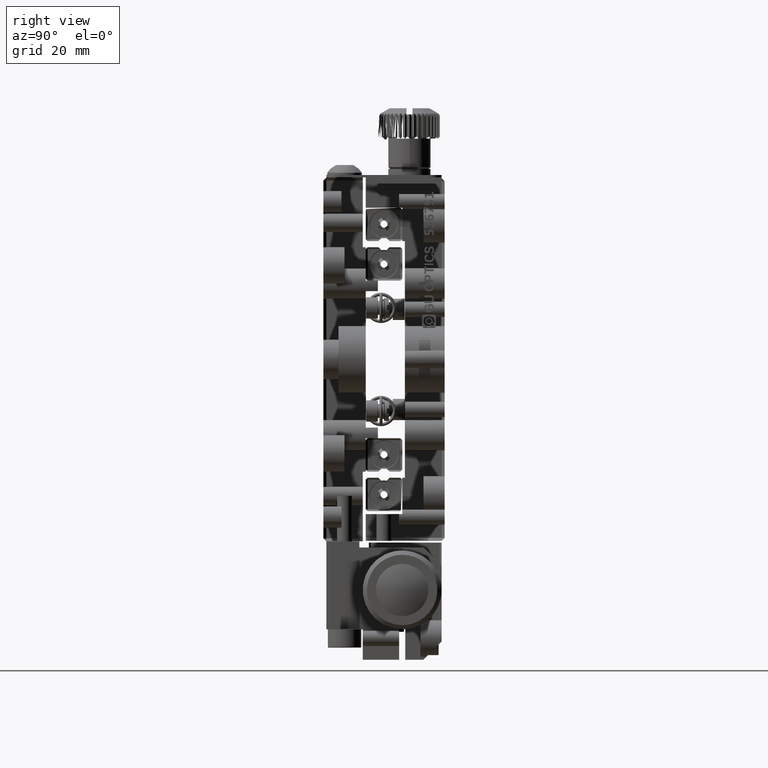
[diagram: clean part render]
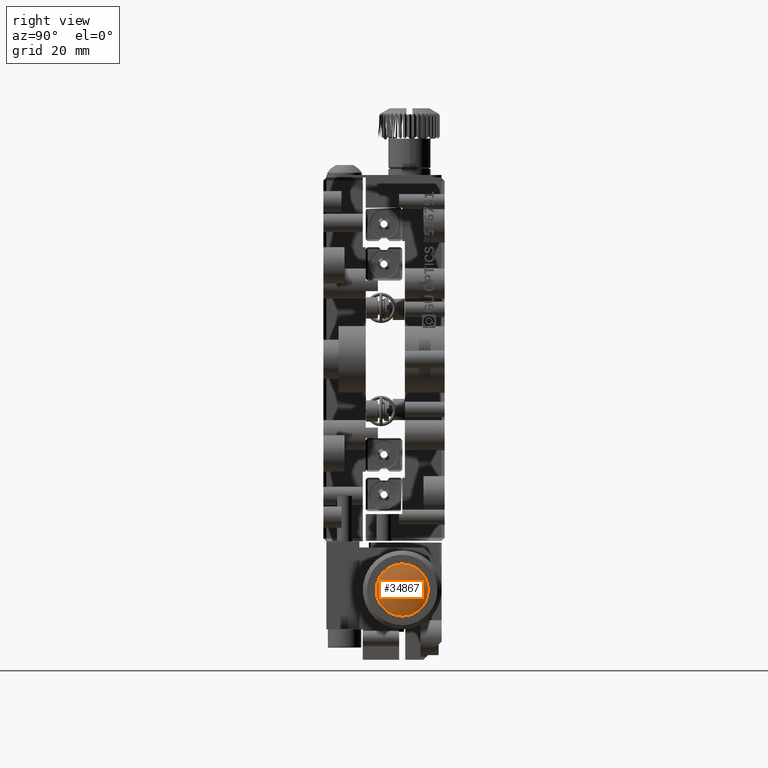
[diagram: same view with one face highlighted and labeled with its STEP entity id]
A machine part, right view. The second image highlights one B-rep face of the part: STEP entity #34867.
In plain terms, the highlighted spherical surface has radius 9.5 mm.
Its self-contained STEP definition (entity closure, byte-faithful):
#124 = CARTESIAN_POINT ( 'NONE',  ( 44.22112591099850931, 10.35744726046766573, -41.43856982131278244 ) ) ;
#1881 = VERTEX_POINT ( 'NONE', #24337 ) ;
#4378 = CARTESIAN_POINT ( 'NONE',  ( 44.22112591099850931, 8.699996999999925151, -38.00000000000000711 ) ) ;
#4810 = CARTESIAN_POINT ( 'NONE',  ( 44.22112591099850931, 8.699996999999928704, -37.43713092353274874 ) ) ;
#6668 = CARTESIAN_POINT ( 'NONE',  ( 44.22112591099850931, 13.00000000000000888, -42.30000300000010327 ) ) ;
#11789 = CARTESIAN_POINT ( 'NONE',  ( 44.22112591099850931, 16.43856982131278244, -40.64255273953235559 ) ) ;
#12212 = CARTESIAN_POINT ( 'NONE',  ( 44.22112591099850931, 16.75728409128255336, -40.16556312645185756 ) ) ;
#12665 = ORIENTED_EDGE ( 'NONE', *, *, #65386, .F. ) ;
#17406 = CARTESIAN_POINT ( 'NONE',  ( 44.22112591099850931, 12.43713092353274519, -33.69999699999993936 ) ) ;
#19675 = CARTESIAN_POINT ( 'NONE',  ( 44.22112591099851642, 11.87448331201142615, -42.18808543159188673 ) ) ;
#20001 = CARTESIAN_POINT ( 'NONE',  ( 44.22112591099850931, 17.30000300000008906, -38.56286907646727968 ) ) ;
#20779 = EDGE_CURVE ( 'NONE', #80279, #47230, #37412, .T. ) ;
#23555 = CARTESIAN_POINT ( 'NONE',  ( 44.22112591099850931, 13.00000000000000888, -33.69999699999993226 ) ) ;
#23680 = CARTESIAN_POINT ( 'NONE',  ( 44.22112591099850931, 17.30000300000008906, -37.43713092353274874 ) ) ;
#24337 = CARTESIAN_POINT ( 'NONE',  ( 44.22112591099850931, 8.699996999999925151, -38.00000000000000711 ) ) ;
#30011 = CARTESIAN_POINT ( 'NONE',  ( 44.22112591099852352, 10.35744726046766573, -34.56143017868723888 ) ) ;
#31344 = CARTESIAN_POINT ( 'NONE',  ( 44.22112591099850931, 17.30000300000009261, -38.00000000000000711 ) ) ;
#31433 = CARTESIAN_POINT ( 'NONE',  ( 44.22112591099850931, 12.43713092353274341, -42.30000300000009616 ) ) ;
#31471 = CARTESIAN_POINT ( 'NONE',  ( 44.22112591099850931, 13.00000000000000888, -33.69999699999993226 ) ) ;
#31979 = B_SPLINE_CURVE_WITH_KNOTS ( 'NONE', 3,
 ( #45179, #20001, #71697, #12212, #11789, #38262, #45607, #46449, #72969, #32179 ),
 .UNSPECIFIED., .F., .F.,
 ( 4, 2, 2, 2, 4 ),
 ( 0.000000000000000000, 0.2500000000000000000, 0.5000000000000000000, 0.7500000000000000000, 1.000000000000000000 ),
 .UNSPECIFIED. ) ;
#32179 = CARTESIAN_POINT ( 'NONE',  ( 44.22112591099850931, 13.00000000000000888, -42.30000300000010327 ) ) ;
#32507 = DIRECTION ( 'NONE',  ( 0.4576507986494785518, 0.000000000000000000, -0.8891320185976289148 ) ) ;
#32917 = FACE_OUTER_BOUND ( 'NONE', #76364, .T. ) ;
#33341 = SPHERICAL_SURFACE ( 'NONE', #48862, 9.499999999999911182 ) ;
#34867 = ADVANCED_FACE ( 'NONE', ( #32917 ), #33341, .T. ) ;
#36514 = CARTESIAN_POINT ( 'NONE',  ( 44.22112591099851642, 8.811914568408143467, -36.87448331201143503 ) ) ;
#36698 = CARTESIAN_POINT ( 'NONE',  ( 44.22112591099850931, 15.16556312645185578, -34.24271590871747151 ) ) ;
#37412 = B_SPLINE_CURVE_WITH_KNOTS ( 'NONE', 3,
 ( #31471, #42769, #44476, #36698, #82326, #83180, #57501, #43190, #23680, #83608 ),
 .UNSPECIFIED., .F., .F.,
 ( 4, 2, 2, 2, 4 ),
 ( 0.000000000000000000, 0.2500000000000000000, 0.5000000000000000000, 0.7500000000000000000, 1.000000000000000000 ),
 .UNSPECIFIED. ) ;
#38262 = CARTESIAN_POINT ( 'NONE',  ( 44.22112591099852352, 15.64255273953234848, -41.43856982131276823 ) ) ;
#39029 = ORIENTED_EDGE ( 'NONE', *, *, #20779, .F. ) ;
#42769 = CARTESIAN_POINT ( 'NONE',  ( 44.22112591099850931, 13.56286907646726902, -33.69999699999993936 ) ) ;
#43012 = CARTESIAN_POINT ( 'NONE',  ( 44.22112591099850931, 10.83443687354816198, -34.24271590871747861 ) ) ;
#43190 = CARTESIAN_POINT ( 'NONE',  ( 44.22112591099852352, 17.18808543159187607, -36.87448331201144924 ) ) ;
#43862 = CARTESIAN_POINT ( 'NONE',  ( 44.22112591099850931, 13.00000000000000888, -33.69999699999993226 ) ) ;
#44440 = CARTESIAN_POINT ( 'NONE',  ( 44.22112591099850931, 13.00000000000000888, -42.30000300000010327 ) ) ;
#44476 = CARTESIAN_POINT ( 'NONE',  ( 44.22112591099851642, 14.12551668798859339, -33.81191456840815590 ) ) ;
#45179 = CARTESIAN_POINT ( 'NONE',  ( 44.22112591099850931, 17.30000300000009261, -38.00000000000000711 ) ) ;
#45279 = CARTESIAN_POINT ( 'NONE',  ( 44.22112591099852352, 8.811914568408143467, -39.12551668798858628 ) ) ;
#45607 = CARTESIAN_POINT ( 'NONE',  ( 44.22112591099850931, 15.16556312645185578, -41.75728409128254981 ) ) ;
#45709 = CARTESIAN_POINT ( 'NONE',  ( 44.22112591099850931, 9.242715908717464401, -40.16556312645185756 ) ) ;
#46156 = VERTEX_POINT ( 'NONE', #6668 ) ;
#46449 = CARTESIAN_POINT ( 'NONE',  ( 44.22112591099852352, 14.12551668798858806, -42.18808543159187963 ) ) ;
#47230 = VERTEX_POINT ( 'NONE', #31344 ) ;
#48862 = AXIS2_PLACEMENT_3D ( 'NONE', #79391, #32507, #72873 ) ;
#53077 = CARTESIAN_POINT ( 'NONE',  ( 44.22112591099852352, 9.561430178687238879, -40.64255273953234138 ) ) ;
#57501 = CARTESIAN_POINT ( 'NONE',  ( 44.22112591099850931, 16.75728409128255691, -35.83443687354817087 ) ) ;
#62993 = CARTESIAN_POINT ( 'NONE',  ( 44.22112591099850931, 9.242715908717462625, -35.83443687354816376 ) ) ;
#65386 = EDGE_CURVE ( 'NONE', #1881, #80279, #79041, .T. ) ;
#66104 = CARTESIAN_POINT ( 'NONE',  ( 44.22112591099850931, 10.83443687354815488, -41.75728409128254270 ) ) ;
#69936 = CARTESIAN_POINT ( 'NONE',  ( 44.22112591099850931, 9.561430178687242432, -35.35744726046767283 ) ) ;
#71233 = CARTESIAN_POINT ( 'NONE',  ( 44.22112591099852352, 11.87448331201142970, -33.81191456840815590 ) ) ;
#71697 = CARTESIAN_POINT ( 'NONE',  ( 44.22112591099851642, 17.18808543159187607, -39.12551668798859339 ) ) ;
#72220 = CARTESIAN_POINT ( 'NONE',  ( 44.22112591099850931, 8.699996999999930480, -38.56286907646727968 ) ) ;
#72873 = DIRECTION ( 'NONE',  ( 0.8891320185976289148, 0.000000000000000000, 0.4576507986494785518 ) ) ;
#72969 = CARTESIAN_POINT ( 'NONE',  ( 44.22112591099850931, 13.56286907646727258, -42.30000300000009616 ) ) ;
#76364 = EDGE_LOOP ( 'NONE', ( #84254, #39029, #12665, #85104 ) ) ;
#78500 = EDGE_CURVE ( 'NONE', #46156, #1881, #84895, .T. ) ;
#78904 = EDGE_CURVE ( 'NONE', #47230, #46156, #31979, .T. ) ;
#79041 = B_SPLINE_CURVE_WITH_KNOTS ( 'NONE', 3,
 ( #4378, #4810, #36514, #62993, #69936, #30011, #43012, #71233, #17406, #43862 ),
 .UNSPECIFIED., .F., .F.,
 ( 4, 2, 2, 2, 4 ),
 ( 0.000000000000000000, 0.2500000000000000000, 0.5000000000000000000, 0.7500000000000000000, 1.000000000000000000 ),
 .UNSPECIFIED. ) ;
#79391 = CARTESIAN_POINT ( 'NONE',  ( 35.75000000000006395, 13.00000000000000711, -37.99999999999991473 ) ) ;
#80279 = VERTEX_POINT ( 'NONE', #23555 ) ;
#82326 = CARTESIAN_POINT ( 'NONE',  ( 44.22112591099850931, 15.64255273953235204, -34.56143017868724598 ) ) ;
#83180 = CARTESIAN_POINT ( 'NONE',  ( 44.22112591099852352, 16.43856982131277533, -35.35744726046767283 ) ) ;
#83608 = CARTESIAN_POINT ( 'NONE',  ( 44.22112591099850931, 17.30000300000009261, -38.00000000000000711 ) ) ;
#84254 = ORIENTED_EDGE ( 'NONE', *, *, #78904, .F. ) ;
#84895 = B_SPLINE_CURVE_WITH_KNOTS ( 'NONE', 3,
 ( #44440, #31433, #19675, #66104, #124, #53077, #45709, #45279, #72220, #85262 ),
 .UNSPECIFIED., .F., .F.,
 ( 4, 2, 2, 2, 4 ),
 ( 0.000000000000000000, 0.2500000000000000000, 0.5000000000000000000, 0.7500000000000000000, 1.000000000000000000 ),
 .UNSPECIFIED. ) ;
#85104 = ORIENTED_EDGE ( 'NONE', *, *, #78500, .F. ) ;
#85262 = CARTESIAN_POINT ( 'NONE',  ( 44.22112591099850931, 8.699996999999925151, -38.00000000000000711 ) ) ;